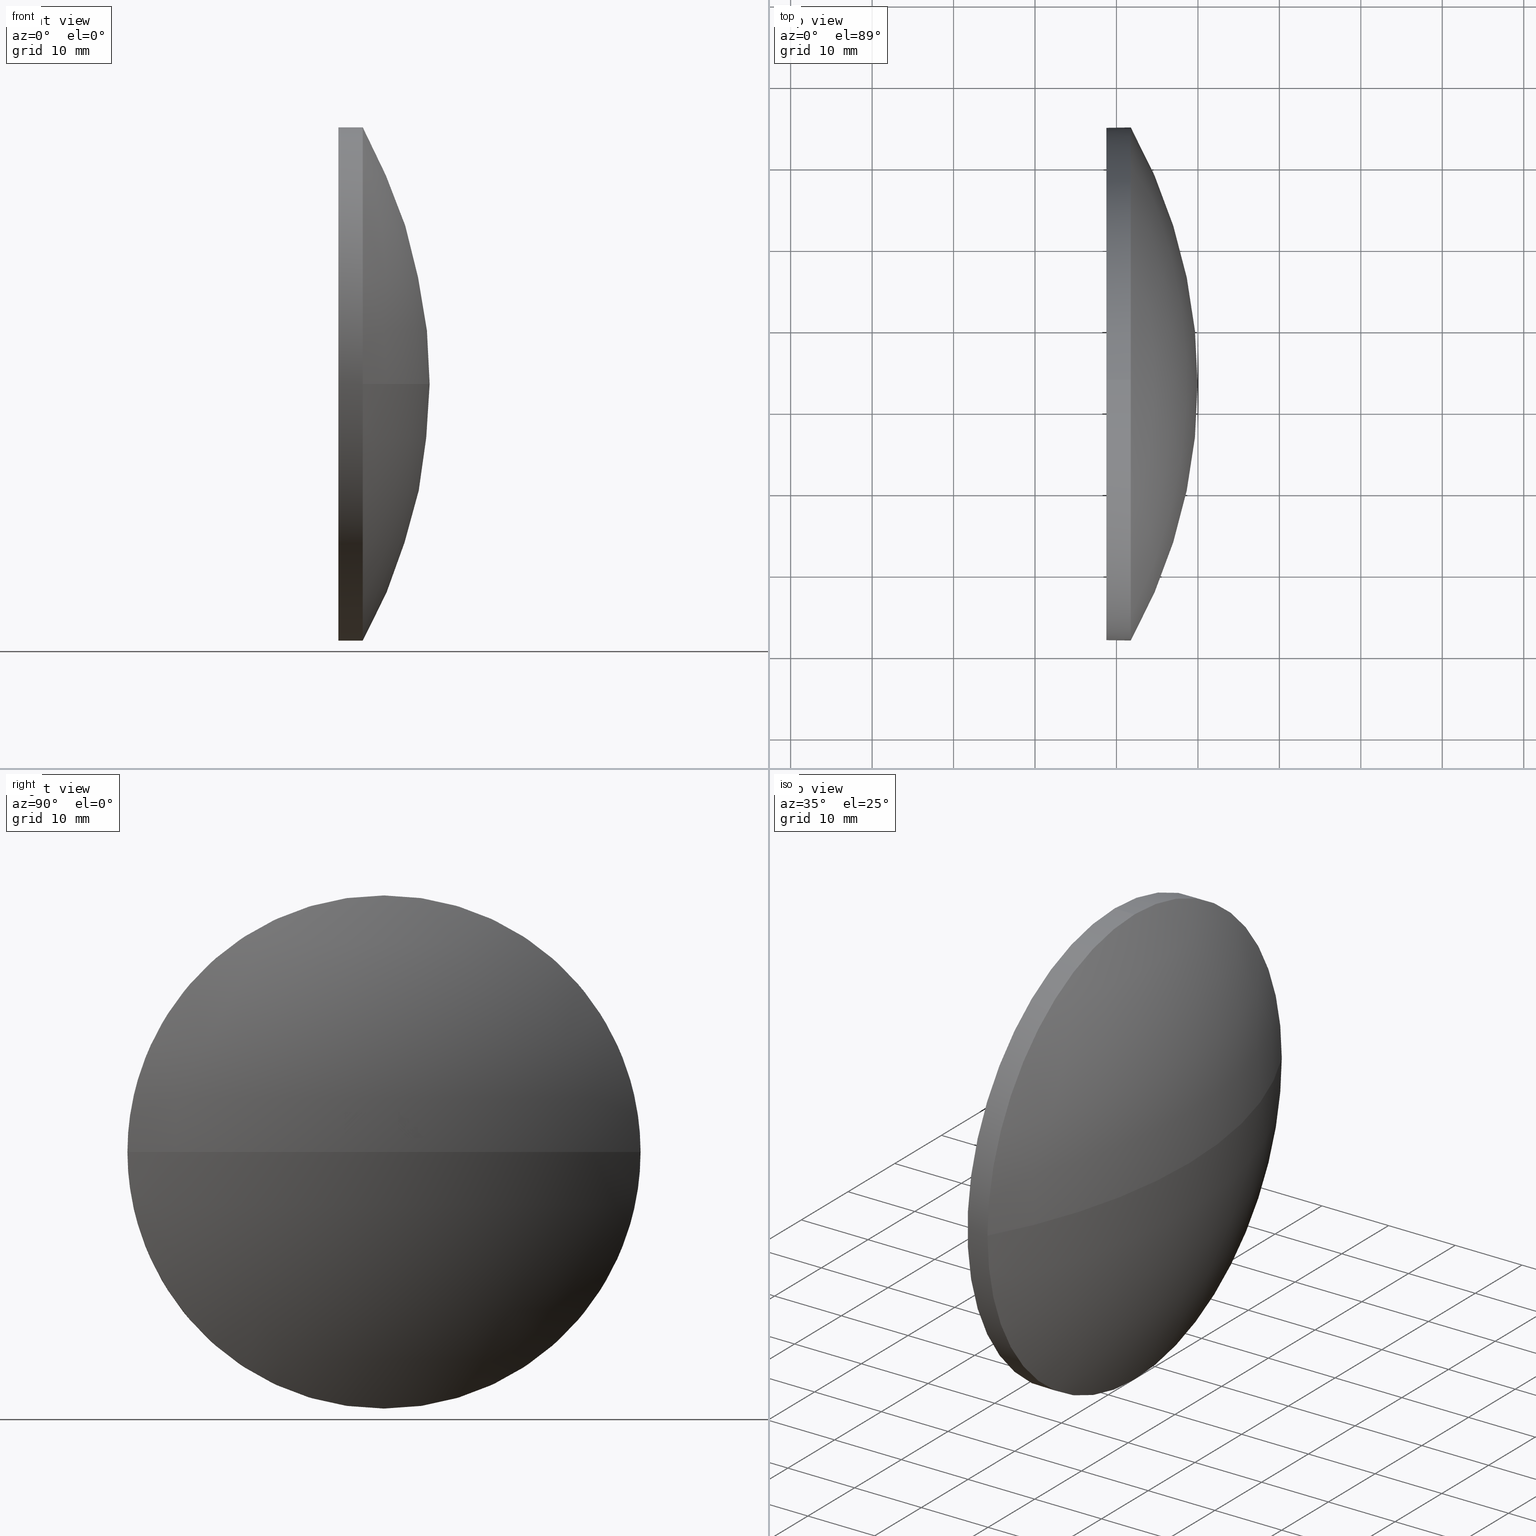
[diagram: canonical four-view strip — front | top / right | iso, engineering-drawing reading convention]
A machine part, canonical four-view strip (front | top / right | iso — engineering-drawing reading convention). The complete STEP part file that produces these views, byte-faithful:
ISO-10303-21;
HEADER;
FILE_DESCRIPTION (( 'STEP AP214' ),
    '1' );
FILE_NAME ('100073.STEP',
    '2019-05-06T03:56:00',
    ( '' ),
    ( '' ),
    'SwSTEP 2.0',
    'SolidWorks 2016',
    '' );
FILE_SCHEMA (( 'AUTOMOTIVE_DESIGN' ));
ENDSEC;

DATA;
#1 = VERTEX_POINT ( 'NONE', #73 ) ;
#2 = CARTESIAN_POINT ( 'NONE',  ( 451.7579245164399700, 33.14734230930400800, 0.0000000000000000000 ) ) ;
#3 = ORIENTED_EDGE ( 'NONE', *, *, #109, .F. ) ;
#4 = CARTESIAN_POINT ( 'NONE',  ( 451.7579245164399700, 33.14734230930400800, 0.0000000000000000000 ) ) ;
#5 = ADVANCED_FACE ( 'NONE', ( #43 ), #113, .T. ) ;
#6 = APPLICATION_PROTOCOL_DEFINITION ( 'draft international standard', 'automotive_design', 1998, #83 ) ;
#7 = CYLINDRICAL_SURFACE ( 'NONE', #171, 31.50000000000000000 ) ;
#8 = PLANE ( 'NONE',  #135 ) ;
#9 = DIRECTION ( 'NONE',  ( 0.0000000000000000000, 0.0000000000000000000, 1.000000000000000000 ) ) ;
#10 = SHAPE_DEFINITION_REPRESENTATION ( #185, #77 ) ;
#11 =( LENGTH_UNIT ( ) NAMED_UNIT ( * ) SI_UNIT ( .MILLI., .METRE. ) );
#12 = EDGE_LOOP ( 'NONE', ( #15, #101 ) ) ;
#13 = EDGE_CURVE ( 'NONE', #55, #89, #144, .T. ) ;
#14 = EDGE_CURVE ( 'NONE', #81, #55, #76, .T. ) ;
#15 = ORIENTED_EDGE ( 'NONE', *, *, #13, .T. ) ;
#16 = DIRECTION ( 'NONE',  ( -1.000000000000000000, -0.0000000000000000000, -0.0000000000000000000 ) ) ;
#17 = DIRECTION ( 'NONE',  ( 0.0000000000000000000, 0.0000000000000000000, 1.000000000000000000 ) ) ;
#18 = DIRECTION ( 'NONE',  ( 0.0000000000000000000, 0.0000000000000000000, 1.000000000000000000 ) ) ;
#19 = DIRECTION ( 'NONE',  ( -1.000000000000000000, -0.0000000000000000000, -0.0000000000000000000 ) ) ;
#20 = ADVANCED_FACE ( 'NONE', ( #33 ), #45, .T. ) ;
#21 = ORIENTED_EDGE ( 'NONE', *, *, #102, .T. ) ;
#22 = EDGE_CURVE ( 'NONE', #50, #81, #70, .T. ) ;
#23 = MECHANICAL_DESIGN_GEOMETRIC_PRESENTATION_REPRESENTATION (  '', ( #186 ), #183 ) ;
#24 = ADVANCED_FACE ( 'NONE', ( #180 ), #7, .T. ) ;
#25 = CIRCLE ( 'NONE', #127, 31.50000000000000000 ) ;
#26 = PRESENTATION_STYLE_ASSIGNMENT (( #167 ) ) ;
#27 = ORIENTED_EDGE ( 'NONE', *, *, #28, .T. ) ;
#28 = EDGE_CURVE ( 'NONE', #81, #1, #69, .T. ) ;
#29 = ORIENTED_EDGE ( 'NONE', *, *, #109, .T. ) ;
#30 = DIRECTION ( 'NONE',  ( 0.0000000000000000000, 1.224646799147353200E-016, -1.000000000000000000 ) ) ;
#31 = DIRECTION ( 'NONE',  ( -0.0000000000000000000, 0.0000000000000000000, -1.000000000000000000 ) ) ;
#32 = CARTESIAN_POINT ( 'NONE',  ( 429.7189694546175900, 33.14734230930400800, 0.0000000000000000000 ) ) ;
#33 = FACE_OUTER_BOUND ( 'NONE', #67, .T. ) ;
#34 = AXIS2_PLACEMENT_3D ( 'NONE', #97, #51, #9 ) ;
#35 =( NAMED_UNIT ( * ) PLANE_ANGLE_UNIT ( ) SI_UNIT ( $, .RADIAN. ) );
#36 = ORIENTED_EDGE ( 'NONE', *, *, #56, .F. ) ;
#37 = CARTESIAN_POINT ( 'NONE',  ( 451.7579245164399700, 33.14734230930401500, -31.50000000000000000 ) ) ;
#38 = AXIS2_PLACEMENT_3D ( 'NONE', #75, #19, #131 ) ;
#39 = FILL_AREA_STYLE ('',( #103 ) ) ;
#40 = PRODUCT ( '100073', '100073', '', ( #95 ) ) ;
#41 = EDGE_LOOP ( 'NONE', ( #138, #29, #36, #87 ) ) ;
#42 = AXIS2_PLACEMENT_3D ( 'NONE', #52, #151, #149 ) ;
#43 = FACE_OUTER_BOUND ( 'NONE', #41, .T. ) ;
#44 = LINE ( 'NONE', #79, #160 ) ;
#45 = SPHERICAL_SURFACE ( 'NONE', #112, 64.53435444579764600 ) ;
#46 = DIRECTION ( 'NONE',  ( -1.000000000000000000, -0.0000000000000000000, -0.0000000000000000000 ) ) ;
#47 = DIRECTION ( 'NONE',  ( 0.0000000000000000000, 1.000000000000000000, 0.0000000000000000000 ) ) ;
#48 = CARTESIAN_POINT ( 'NONE',  ( 451.7579245164399700, 1.647342309304022900, -3.857637417314160300E-015 ) ) ;
#49 = CARTESIAN_POINT ( 'NONE',  ( 448.7579245164399700, 33.14734230930401500, -31.50000000000000000 ) ) ;
#50 = VERTEX_POINT ( 'NONE', #48 ) ;
#51 = DIRECTION ( 'NONE',  ( -1.000000000000000000, -0.0000000000000000000, -0.0000000000000000000 ) ) ;
#52 = CARTESIAN_POINT ( 'NONE',  ( 395.4335700706423600, 33.14734230930400800, 0.0000000000000000000 ) ) ;
#53 = CARTESIAN_POINT ( 'NONE',  ( 459.9679245164399500, 33.14734230930401500, 0.0000000000000000000 ) ) ;
#54 = STYLED_ITEM ( 'NONE', ( #159 ), #77 ) ;
#55 = VERTEX_POINT ( 'NONE', #92 ) ;
#56 = EDGE_CURVE ( 'NONE', #182, #50, #137, .T. ) ;
#57 =( GEOMETRIC_REPRESENTATION_CONTEXT ( 3 ) GLOBAL_UNCERTAINTY_ASSIGNED_CONTEXT ( ( #90 ) ) GLOBAL_UNIT_ASSIGNED_CONTEXT ( ( #11, #179, #166 ) ) REPRESENTATION_CONTEXT ( 'NONE', 'WORKASPACE' ) );
#58 = CIRCLE ( 'NONE', #141, 64.53435444579764600 ) ;
#59 = DIRECTION ( 'NONE',  ( -1.000000000000000000, -0.0000000000000000000, -0.0000000000000000000 ) ) ;
#60 =( GEOMETRIC_REPRESENTATION_CONTEXT ( 3 ) GLOBAL_UNCERTAINTY_ASSIGNED_CONTEXT ( ( #170 ) ) GLOBAL_UNIT_ASSIGNED_CONTEXT ( ( #107, #148, #136 ) ) REPRESENTATION_CONTEXT ( 'NONE', 'WORKASPACE' ) );
#61 = DIRECTION ( 'NONE',  ( -1.000000000000000000, -0.0000000000000000000, -0.0000000000000000000 ) ) ;
#62 = CARTESIAN_POINT ( 'NONE',  ( 448.7579245164399700, 33.14734230930400800, 0.0000000000000000000 ) ) ;
#63 = SURFACE_STYLE_USAGE ( .BOTH. , #152 ) ;
#64 = APPLICATION_CONTEXT ( 'automotive_design' ) ;
#65 = COLOUR_RGB ( '',1.000000000000000000, 1.000000000000000000, 1.000000000000000000 ) ;
#66 = DIRECTION ( 'NONE',  ( 1.000000000000000000, 0.0000000000000000000, 0.0000000000000000000 ) ) ;
#67 = EDGE_LOOP ( 'NONE', ( #3, #114, #122, #99 ) ) ;
#68 = AXIS2_PLACEMENT_3D ( 'NONE', #162, #173, #146 ) ;
#69 = CIRCLE ( 'NONE', #132, 31.50000000000000000 ) ;
#70 = CIRCLE ( 'NONE', #176, 31.50000000000000000 ) ;
#71 = PRESENTATION_LAYER_ASSIGNMENT (  '', '', ( #54 ) ) ;
#72 = EDGE_LOOP ( 'NONE', ( #21, #94, #153, #150, #27 ) ) ;
#73 = CARTESIAN_POINT ( 'NONE',  ( 451.7579245164399700, 64.64734230930399400, 0.0000000000000000000 ) ) ;
#74 = CARTESIAN_POINT ( 'NONE',  ( 395.4335700706423600, 33.14734230930400800, 0.0000000000000000000 ) ) ;
#75 = CARTESIAN_POINT ( 'NONE',  ( 448.7579245164399700, 33.14734230930400800, 0.0000000000000000000 ) ) ;
#76 = LINE ( 'NONE', #161, #143 ) ;
#77 = ADVANCED_BREP_SHAPE_REPRESENTATION ( '100073', ( #110, #155 ), #60 ) ;
#78 = DIRECTION ( 'NONE',  ( -0.0000000000000000000, 0.0000000000000000000, -1.000000000000000000 ) ) ;
#79 = CARTESIAN_POINT ( 'NONE',  ( 429.7189694546175900, 33.14734230930401500, -31.50000000000000000 ) ) ;
#80 = DIRECTION ( 'NONE',  ( 0.0000000000000000000, 0.0000000000000000000, 1.000000000000000000 ) ) ;
#81 = VERTEX_POINT ( 'NONE', #145 ) ;
#82 =( LENGTH_UNIT ( ) NAMED_UNIT ( * ) SI_UNIT ( .MILLI., .METRE. ) );
#83 = APPLICATION_CONTEXT ( 'automotive_design' ) ;
#84 = DIRECTION ( 'NONE',  ( -1.000000000000000000, -0.0000000000000000000, -0.0000000000000000000 ) ) ;
#85 = DIRECTION ( 'NONE',  ( 0.0000000000000000000, 0.0000000000000000000, -1.000000000000000000 ) ) ;
#86 = MECHANICAL_DESIGN_GEOMETRIC_PRESENTATION_REPRESENTATION (  '', ( #54 ), #57 ) ;
#87 = ORIENTED_EDGE ( 'NONE', *, *, #102, .F. ) ;
#88 = PRODUCT_RELATED_PRODUCT_CATEGORY ( 'part', '', ( #40 ) ) ;
#89 = VERTEX_POINT ( 'NONE', #49 ) ;
#90 = UNCERTAINTY_MEASURE_WITH_UNIT (LENGTH_MEASURE( 1.000000000000000100E-005 ), #11, 'distance_accuracy_value', 'NONE');
#91 = CIRCLE ( 'NONE', #42, 64.53435444579763200 ) ;
#92 = CARTESIAN_POINT ( 'NONE',  ( 448.7579245164399700, 33.14734230930400800, 31.50000000000000000 ) ) ;
#93 = CARTESIAN_POINT ( 'NONE',  ( 429.7189694546175900, 33.14734230930400800, 0.0000000000000000000 ) ) ;
#94 = ORIENTED_EDGE ( 'NONE', *, *, #115, .T. ) ;
#95 = PRODUCT_CONTEXT ( 'NONE', #64, 'mechanical' ) ;
#96 = CARTESIAN_POINT ( 'NONE',  ( 0.0000000000000000000, 0.0000000000000000000, 0.0000000000000000000 ) ) ;
#97 = CARTESIAN_POINT ( 'NONE',  ( 448.7579245164399700, 33.14734230930400800, 0.0000000000000000000 ) ) ;
#98 = ADVANCED_FACE ( 'NONE', ( #140 ), #175, .T. ) ;
#99 = ORIENTED_EDGE ( 'NONE', *, *, #22, .F. ) ;
#100 = ORIENTED_EDGE ( 'NONE', *, *, #56, .T. ) ;
#101 = ORIENTED_EDGE ( 'NONE', *, *, #154, .T. ) ;
#102 = EDGE_CURVE ( 'NONE', #1, #182, #25, .T. ) ;
#103 = FILL_AREA_STYLE_COLOUR ( '', #65 ) ;
#104 = CLOSED_SHELL ( 'NONE', ( #98, #5, #20, #24, #130 ) ) ;
#105 = DIRECTION ( 'NONE',  ( -1.000000000000000000, -0.0000000000000000000, -0.0000000000000000000 ) ) ;
#106 = SURFACE_STYLE_FILL_AREA ( #39 ) ;
#107 =( LENGTH_UNIT ( ) NAMED_UNIT ( * ) SI_UNIT ( .MILLI., .METRE. ) );
#108 = COLOUR_RGB ( '',1.000000000000000000, 1.000000000000000000, 1.000000000000000000 ) ;
#109 = EDGE_CURVE ( 'NONE', #184, #50, #58, .T. ) ;
#110 = MANIFOLD_SOLID_BREP ( '��ת1', #104 ) ;
#111 = ORIENTED_EDGE ( 'NONE', *, *, #22, .T. ) ;
#112 = AXIS2_PLACEMENT_3D ( 'NONE', #133, #31, #117 ) ;
#113 = SPHERICAL_SURFACE ( 'NONE', #139, 64.53435444579764600 ) ;
#114 = ORIENTED_EDGE ( 'NONE', *, *, #157, .T. ) ;
#115 = EDGE_CURVE ( 'NONE', #182, #89, #44, .T. ) ;
#116 = DIRECTION ( 'NONE',  ( 0.0000000000000000000, 0.0000000000000000000, 1.000000000000000000 ) ) ;
#117 = DIRECTION ( 'NONE',  ( 0.0000000000000000000, 1.000000000000000000, 0.0000000000000000000 ) ) ;
#118 = CIRCLE ( 'NONE', #34, 31.50000000000000000 ) ;
#119 = CARTESIAN_POINT ( 'NONE',  ( 395.4335700706423600, 33.14734230930400800, 0.0000000000000000000 ) ) ;
#120 = DIRECTION ( 'NONE',  ( 0.0000000000000000000, 0.0000000000000000000, 1.000000000000000000 ) ) ;
#121 = SURFACE_SIDE_STYLE ('',( #106 ) ) ;
#122 = ORIENTED_EDGE ( 'NONE', *, *, #28, .F. ) ;
#123 = DIRECTION ( 'NONE',  ( 1.000000000000000000, 0.0000000000000000000, 0.0000000000000000000 ) ) ;
#124 = FILL_AREA_STYLE_COLOUR ( '', #108 ) ;
#125 =( NAMED_UNIT ( * ) SI_UNIT ( $, .STERADIAN. ) SOLID_ANGLE_UNIT ( ) );
#126 = EDGE_LOOP ( 'NONE', ( #156, #100, #111, #178, #163 ) ) ;
#127 = AXIS2_PLACEMENT_3D ( 'NONE', #147, #59, #116 ) ;
#128 = PRODUCT_DEFINITION_CONTEXT ( 'detailed design', #83, 'design' ) ;
#129 = SURFACE_STYLE_FILL_AREA ( #177 ) ;
#130 = ADVANCED_FACE ( 'NONE', ( #168 ), #8, .F. ) ;
#131 = DIRECTION ( 'NONE',  ( 0.0000000000000000000, 0.0000000000000000000, 1.000000000000000000 ) ) ;
#132 = AXIS2_PLACEMENT_3D ( 'NONE', #4, #46, #18 ) ;
#133 = CARTESIAN_POINT ( 'NONE',  ( 395.4335700706423600, 33.14734230930400800, 0.0000000000000000000 ) ) ;
#134 = DIRECTION ( 'NONE',  ( 0.0000000000000000000, 1.000000000000000000, 1.224646799147353500E-016 ) ) ;
#135 = AXIS2_PLACEMENT_3D ( 'NONE', #62, #123, #85 ) ;
#136 =( NAMED_UNIT ( * ) SI_UNIT ( $, .STERADIAN. ) SOLID_ANGLE_UNIT ( ) );
#137 = CIRCLE ( 'NONE', #68, 31.50000000000000000 ) ;
#138 = ORIENTED_EDGE ( 'NONE', *, *, #157, .F. ) ;
#139 = AXIS2_PLACEMENT_3D ( 'NONE', #74, #78, #47 ) ;
#140 = FACE_OUTER_BOUND ( 'NONE', #72, .T. ) ;
#141 = AXIS2_PLACEMENT_3D ( 'NONE', #119, #30, #134 ) ;
#142 = PRESENTATION_LAYER_ASSIGNMENT (  '', '', ( #186 ) ) ;
#143 = VECTOR ( 'NONE', #105, 1000.000000000000000 ) ;
#144 = CIRCLE ( 'NONE', #38, 31.50000000000000000 ) ;
#145 = CARTESIAN_POINT ( 'NONE',  ( 451.7579245164399700, 33.14734230930400800, 31.50000000000000000 ) ) ;
#146 = DIRECTION ( 'NONE',  ( 0.0000000000000000000, 0.0000000000000000000, 1.000000000000000000 ) ) ;
#147 = CARTESIAN_POINT ( 'NONE',  ( 451.7579245164399700, 33.14734230930400800, 0.0000000000000000000 ) ) ;
#148 =( NAMED_UNIT ( * ) PLANE_ANGLE_UNIT ( ) SI_UNIT ( $, .RADIAN. ) );
#149 = DIRECTION ( 'NONE',  ( 1.000000000000000000, 0.0000000000000000000, 0.0000000000000000000 ) ) ;
#150 = ORIENTED_EDGE ( 'NONE', *, *, #14, .F. ) ;
#151 = DIRECTION ( 'NONE',  ( -0.0000000000000000000, 0.0000000000000000000, 1.000000000000000000 ) ) ;
#152 = SURFACE_SIDE_STYLE ('',( #129 ) ) ;
#153 = ORIENTED_EDGE ( 'NONE', *, *, #13, .F. ) ;
#154 = EDGE_CURVE ( 'NONE', #89, #55, #118, .T. ) ;
#155 = AXIS2_PLACEMENT_3D ( 'NONE', #96, #80, #66 ) ;
#156 = ORIENTED_EDGE ( 'NONE', *, *, #115, .F. ) ;
#157 = EDGE_CURVE ( 'NONE', #184, #1, #91, .T. ) ;
#158 = PRODUCT_DEFINITION_FORMATION_WITH_SPECIFIED_SOURCE ( '�κ�', '', #40, .NOT_KNOWN. ) ;
#159 = PRESENTATION_STYLE_ASSIGNMENT (( #63 ) ) ;
#160 = VECTOR ( 'NONE', #84, 1000.000000000000000 ) ;
#161 = CARTESIAN_POINT ( 'NONE',  ( 429.7189694546175900, 33.14734230930400800, 31.50000000000000000 ) ) ;
#162 = CARTESIAN_POINT ( 'NONE',  ( 451.7579245164399700, 33.14734230930400800, 0.0000000000000000000 ) ) ;
#163 = ORIENTED_EDGE ( 'NONE', *, *, #154, .F. ) ;
#164 = APPLICATION_PROTOCOL_DEFINITION ( 'draft international standard', 'automotive_design', 1998, #64 ) ;
#165 = UNCERTAINTY_MEASURE_WITH_UNIT (LENGTH_MEASURE( 1.000000000000000100E-005 ), #82, 'distance_accuracy_value', 'NONE');
#166 =( NAMED_UNIT ( * ) SI_UNIT ( $, .STERADIAN. ) SOLID_ANGLE_UNIT ( ) );
#167 = SURFACE_STYLE_USAGE ( .BOTH. , #121 ) ;
#168 = FACE_OUTER_BOUND ( 'NONE', #12, .T. ) ;
#169 = PRODUCT_DEFINITION ( 'δ֪', '', #158, #128 ) ;
#170 = UNCERTAINTY_MEASURE_WITH_UNIT (LENGTH_MEASURE( 1.000000000000000100E-005 ), #107, 'distance_accuracy_value', 'NONE');
#171 = AXIS2_PLACEMENT_3D ( 'NONE', #93, #16, #17 ) ;
#172 = DIRECTION ( 'NONE',  ( 0.0000000000000000000, 0.0000000000000000000, 1.000000000000000000 ) ) ;
#173 = DIRECTION ( 'NONE',  ( -1.000000000000000000, -0.0000000000000000000, -0.0000000000000000000 ) ) ;
#174 = DIRECTION ( 'NONE',  ( -1.000000000000000000, -0.0000000000000000000, -0.0000000000000000000 ) ) ;
#175 = CYLINDRICAL_SURFACE ( 'NONE', #181, 31.50000000000000000 ) ;
#176 = AXIS2_PLACEMENT_3D ( 'NONE', #2, #174, #120 ) ;
#177 = FILL_AREA_STYLE ('',( #124 ) ) ;
#178 = ORIENTED_EDGE ( 'NONE', *, *, #14, .T. ) ;
#179 =( NAMED_UNIT ( * ) PLANE_ANGLE_UNIT ( ) SI_UNIT ( $, .RADIAN. ) );
#180 = FACE_OUTER_BOUND ( 'NONE', #126, .T. ) ;
#181 = AXIS2_PLACEMENT_3D ( 'NONE', #32, #61, #172 ) ;
#182 = VERTEX_POINT ( 'NONE', #37 ) ;
#183 =( GEOMETRIC_REPRESENTATION_CONTEXT ( 3 ) GLOBAL_UNCERTAINTY_ASSIGNED_CONTEXT ( ( #165 ) ) GLOBAL_UNIT_ASSIGNED_CONTEXT ( ( #82, #35, #125 ) ) REPRESENTATION_CONTEXT ( 'NONE', 'WORKASPACE' ) );
#184 = VERTEX_POINT ( 'NONE', #53 ) ;
#185 = PRODUCT_DEFINITION_SHAPE ( 'NONE', 'NONE',  #169 ) ;
#186 = STYLED_ITEM ( 'NONE', ( #26 ), #110 ) ;
ENDSEC;
END-ISO-10303-21;
